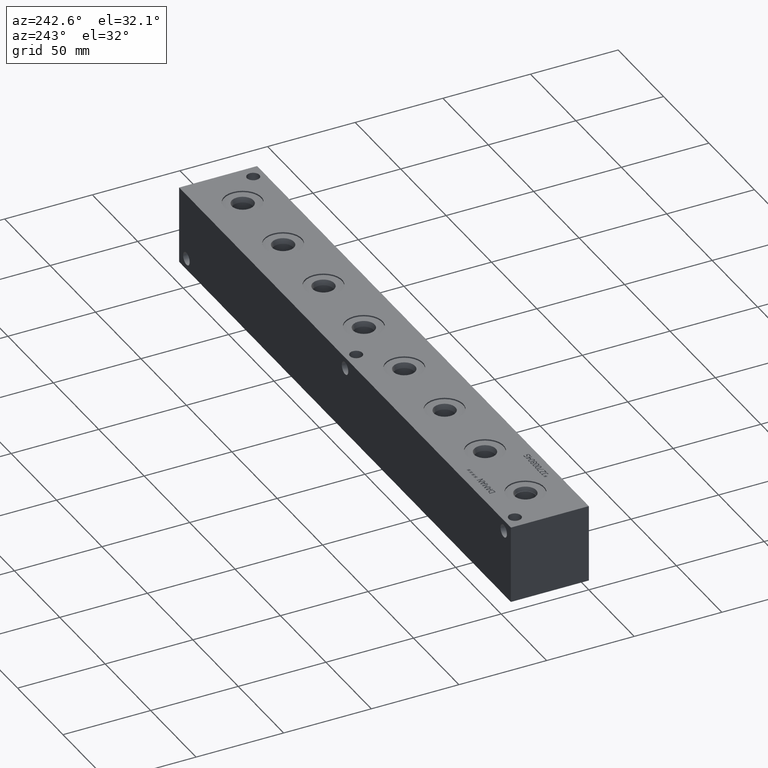
[diagram: clean part render]
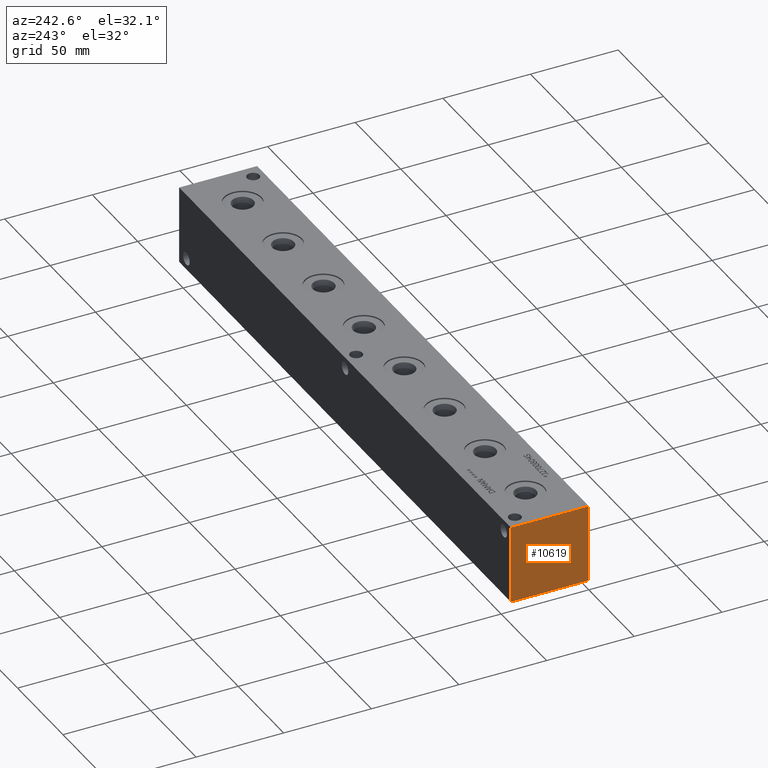
[diagram: same view with one face highlighted and labeled with its STEP entity id]
A machine part, auxiliary view. The second image highlights one B-rep face of the part: STEP entity #10619.
In plain terms, the highlighted planar face has unit normal (-1, 0, 0).
Its self-contained STEP definition (entity closure, byte-faithful):
#1034=PLANE('',#11539);
#1604=FACE_OUTER_BOUND('',#2269,.T.);
#2269=EDGE_LOOP('',(#9597,#9598,#9599,#9600));
#2564=LINE('',#16217,#3402);
#3130=LINE('',#18896,#3968);
#3131=LINE('',#18897,#3969);
#3132=LINE('',#18898,#3970);
#3402=VECTOR('',#11949,10.);
#3968=VECTOR('',#14179,10.);
#3969=VECTOR('',#14180,10.);
#3970=VECTOR('',#14181,10.);
#4488=VERTEX_POINT('',#16210);
#4491=VERTEX_POINT('',#16215);
#5187=VERTEX_POINT('',#18894);
#5188=VERTEX_POINT('',#18895);
#5629=EDGE_CURVE('',#4491,#4488,#2564,.T.);
#6674=EDGE_CURVE('',#5187,#5188,#3130,.T.);
#6675=EDGE_CURVE('',#5188,#4488,#3131,.T.);
#6676=EDGE_CURVE('',#5187,#4491,#3132,.T.);
#9597=ORIENTED_EDGE('',*,*,#6674,.T.);
#9598=ORIENTED_EDGE('',*,*,#6675,.T.);
#9599=ORIENTED_EDGE('',*,*,#5629,.F.);
#9600=ORIENTED_EDGE('',*,*,#6676,.F.);
#10619=ADVANCED_FACE('',(#1604),#1034,.T.);
#11539=AXIS2_PLACEMENT_3D('',#18893,#14177,#14178);
#11949=DIRECTION('',(0.,-1.,0.));
#14177=DIRECTION('center_axis',(-1.,0.,0.));
#14178=DIRECTION('ref_axis',(0.,-1.,0.));
#14179=DIRECTION('',(0.,-1.,0.));
#14180=DIRECTION('',(0.,0.,1.));
#14181=DIRECTION('',(0.,0.,1.));
#16210=CARTESIAN_POINT('',(0.,0.,44.45));
#16215=CARTESIAN_POINT('',(0.,44.45,44.45));
#16217=CARTESIAN_POINT('',(0.,44.45,44.45));
#18893=CARTESIAN_POINT('Origin',(0.,44.45,0.));
#18894=CARTESIAN_POINT('',(0.,44.45,0.));
#18895=CARTESIAN_POINT('',(0.,0.,0.));
#18896=CARTESIAN_POINT('',(0.,44.45,0.));
#18897=CARTESIAN_POINT('',(0.,0.,0.));
#18898=CARTESIAN_POINT('',(0.,44.45,0.));